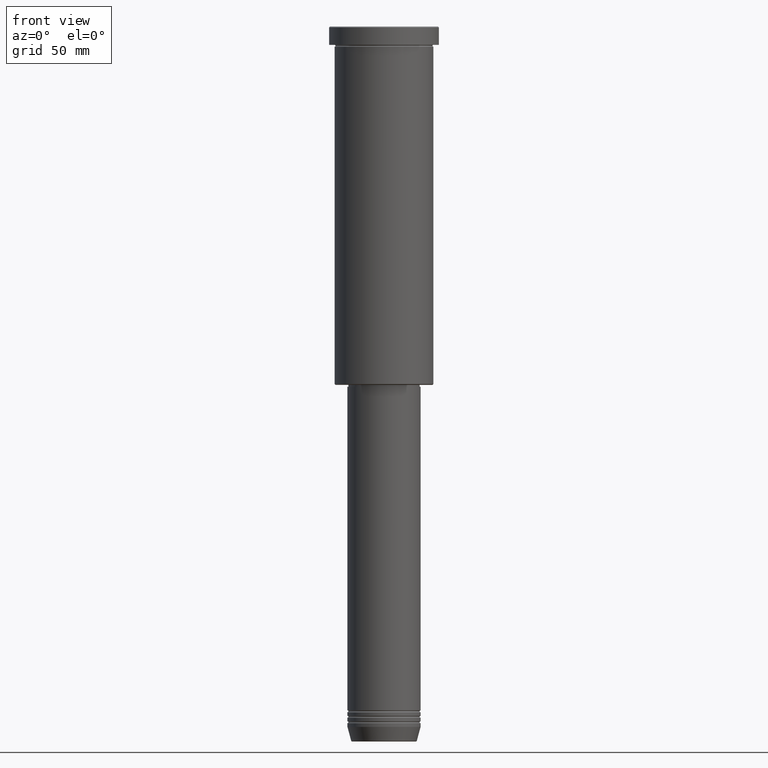
[diagram: clean part render]
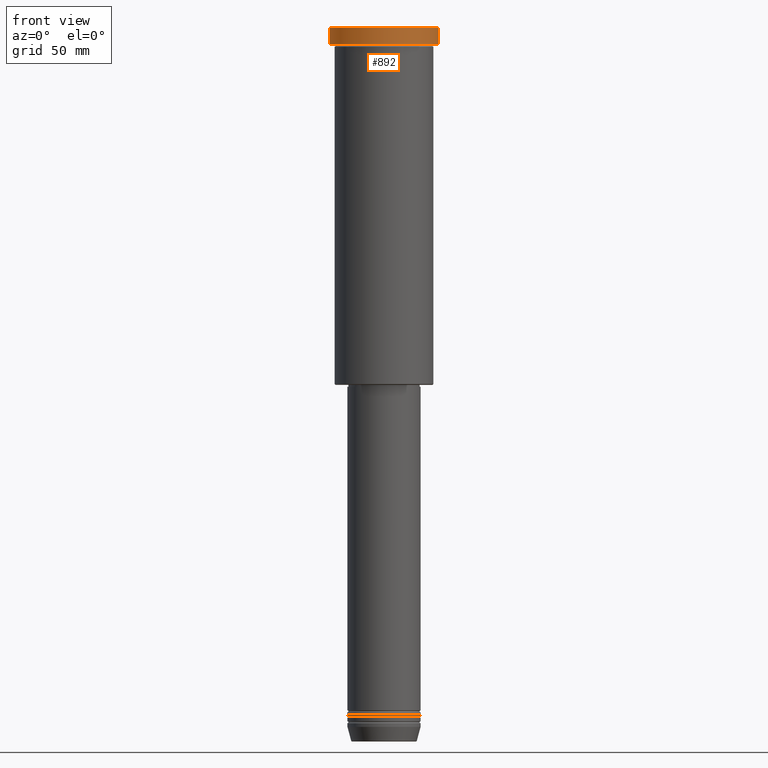
[diagram: same view with one face highlighted and labeled with its STEP entity id]
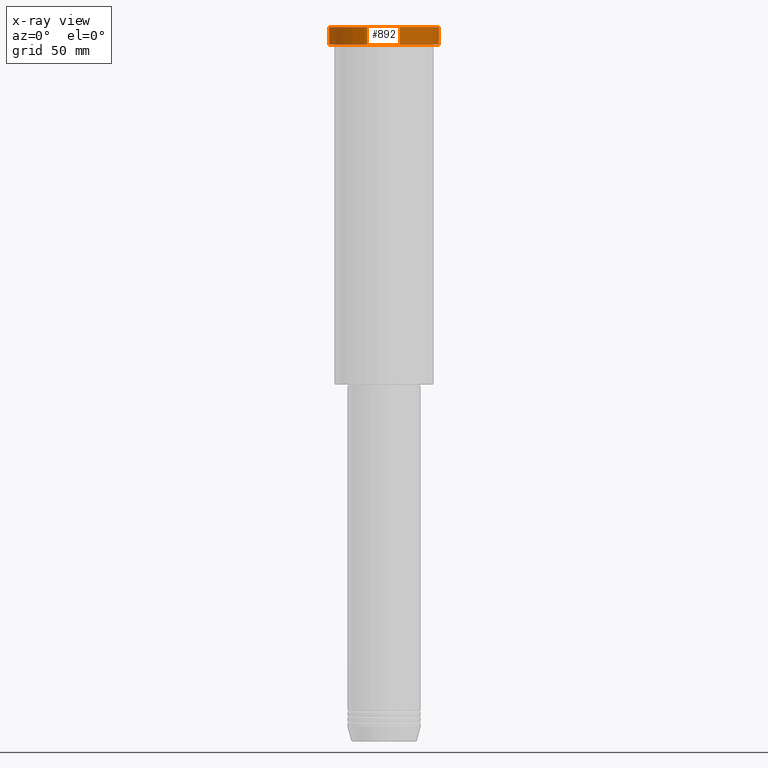
[diagram: x-ray of the same camera — body ghosted, the highlighted face saturated]
A machine part, front view. The second image highlights one B-rep face of the part: STEP entity #892.
The next image is the same camera in x-ray: the body ghosted, the highlighted face saturated — about 0% of this face is hidden behind the body in this view.
In plain terms, the highlighted cylindrical surface (partial cylindrical patch) has radius 30 mm, axis along (-0, -0, 1).
Its self-contained STEP definition (entity closure, byte-faithful):
#66 = CYLINDRICAL_SURFACE ( 'NONE', #1089, 30.00000000000000000 ) ;
#72 = FACE_OUTER_BOUND ( 'NONE', #294, .T. ) ;
#87 = ORIENTED_EDGE ( 'NONE', *, *, #230, .F. ) ;
#118 = EDGE_CURVE ( 'NONE', #1059, #990, #150, .T. ) ;
#122 = DIRECTION ( 'NONE',  ( 1.000000000000000000, 0.000000000000000000, 0.000000000000000000 ) ) ;
#150 = CIRCLE ( 'NONE', #767, 30.00000000000000000 ) ;
#167 = DIRECTION ( 'NONE',  ( -0.000000000000000000, -0.000000000000000000, 1.000000000000000000 ) ) ;
#203 = CIRCLE ( 'NONE', #490, 30.00000000000000000 ) ;
#217 = ORIENTED_EDGE ( 'NONE', *, *, #118, .T. ) ;
#230 = EDGE_CURVE ( 'NONE', #680, #990, #580, .T. ) ;
#244 = DIRECTION ( 'NONE',  ( 0.000000000000000000, 0.000000000000000000, -1.000000000000000000 ) ) ;
#294 = EDGE_LOOP ( 'NONE', ( #87, #870, #1017, #217 ) ) ;
#299 = DIRECTION ( 'NONE',  ( -0.000000000000000000, -0.000000000000000000, 1.000000000000000000 ) ) ;
#323 = CARTESIAN_POINT ( 'NONE',  ( 0.000000000000000000, 0.000000000000000000, -9.999999999999992895 ) ) ;
#348 = EDGE_CURVE ( 'NONE', #680, #1144, #203, .T. ) ;
#363 = DIRECTION ( 'NONE',  ( -0.000000000000000000, -0.000000000000000000, 1.000000000000000000 ) ) ;
#379 = CARTESIAN_POINT ( 'NONE',  ( 30.00000000000000000, 0.000000000000000000, 0.000000000000000000 ) ) ;
#479 = CARTESIAN_POINT ( 'NONE',  ( -30.00000000000000000, 3.673940397442059178E-15, -0.5000000000000073275 ) ) ;
#490 = AXIS2_PLACEMENT_3D ( 'NONE', #323, #922, #122 ) ;
#514 = DIRECTION ( 'NONE',  ( 1.000000000000000000, 0.000000000000000000, 0.000000000000000000 ) ) ;
#547 = VECTOR ( 'NONE', #167, 1000.000000000000000 ) ;
#580 = LINE ( 'NONE', #936, #602 ) ;
#602 = VECTOR ( 'NONE', #299, 1000.000000000000000 ) ;
#603 = CARTESIAN_POINT ( 'NONE',  ( 0.000000000000000000, 0.000000000000000000, -0.5000000000000073275 ) ) ;
#680 = VERTEX_POINT ( 'NONE', #787 ) ;
#702 = DIRECTION ( 'NONE',  ( 1.000000000000000000, 0.000000000000000000, 0.000000000000000000 ) ) ;
#767 = AXIS2_PLACEMENT_3D ( 'NONE', #603, #244, #702 ) ;
#787 = CARTESIAN_POINT ( 'NONE',  ( -30.00000000000000000, 3.673940397442059178E-15, -9.999999999999992895 ) ) ;
#867 = EDGE_CURVE ( 'NONE', #1144, #1059, #1173, .T. ) ;
#870 = ORIENTED_EDGE ( 'NONE', *, *, #348, .T. ) ;
#892 = ADVANCED_FACE ( 'NONE', ( #72 ), #66, .T. ) ;
#922 = DIRECTION ( 'NONE',  ( -0.000000000000000000, -0.000000000000000000, 1.000000000000000000 ) ) ;
#936 = CARTESIAN_POINT ( 'NONE',  ( -30.00000000000000000, 3.673940397442059178E-15, 0.000000000000000000 ) ) ;
#990 = VERTEX_POINT ( 'NONE', #479 ) ;
#1004 = CARTESIAN_POINT ( 'NONE',  ( 30.00000000000000000, 0.000000000000000000, -0.5000000000000073275 ) ) ;
#1017 = ORIENTED_EDGE ( 'NONE', *, *, #867, .T. ) ;
#1059 = VERTEX_POINT ( 'NONE', #1004 ) ;
#1065 = CARTESIAN_POINT ( 'NONE',  ( 0.000000000000000000, 0.000000000000000000, 0.000000000000000000 ) ) ;
#1089 = AXIS2_PLACEMENT_3D ( 'NONE', #1065, #363, #514 ) ;
#1119 = CARTESIAN_POINT ( 'NONE',  ( 30.00000000000000000, 0.000000000000000000, -9.999999999999992895 ) ) ;
#1144 = VERTEX_POINT ( 'NONE', #1119 ) ;
#1173 = LINE ( 'NONE', #379, #547 ) ;